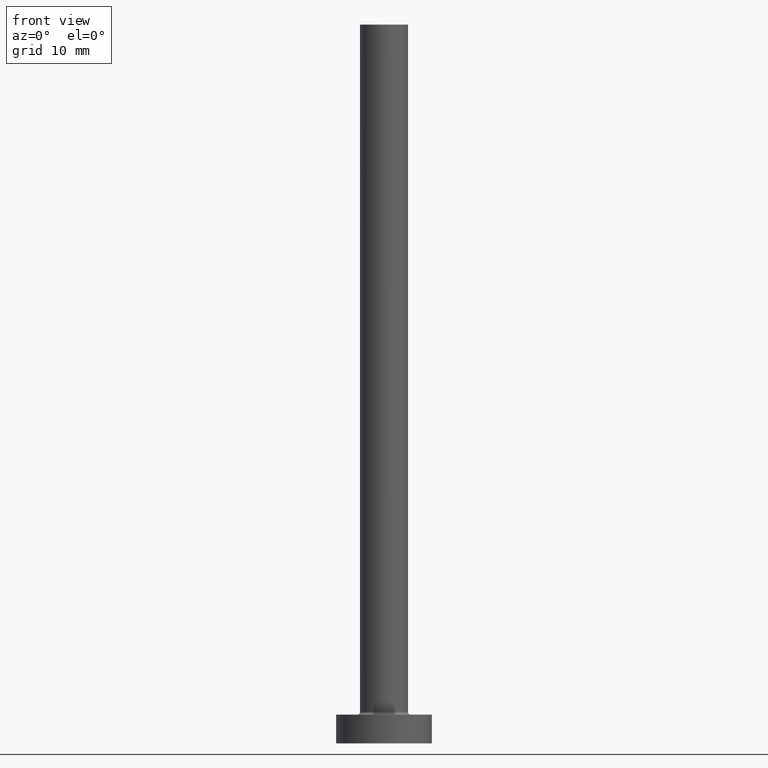
[diagram: clean part render]
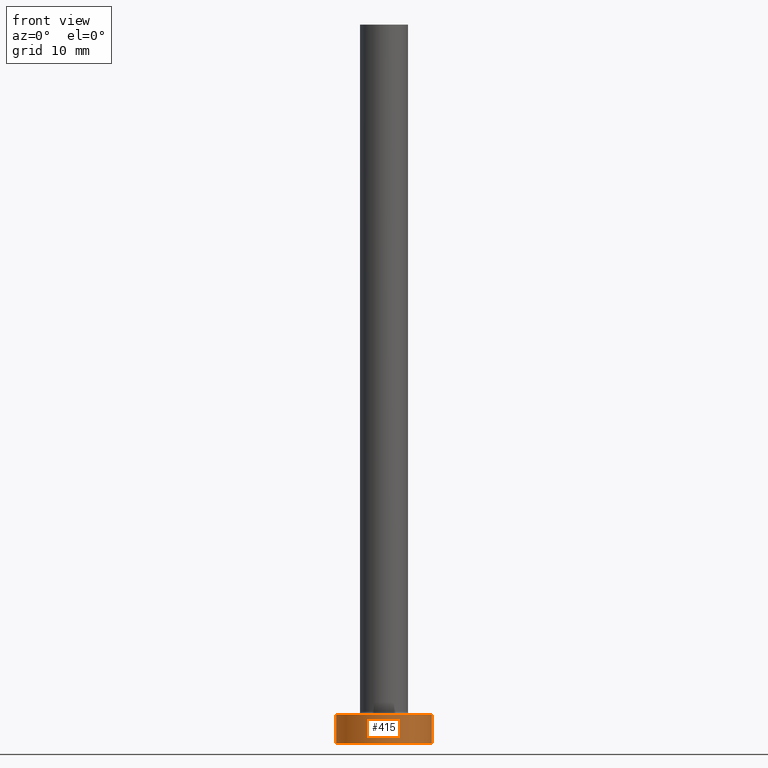
[diagram: same view with one face highlighted and labeled with its STEP entity id]
A machine part, front view. The second image highlights one B-rep face of the part: STEP entity #415.
In plain terms, the highlighted cylindrical surface (partial cylindrical patch) has radius 5 mm, axis along (-0, -0, -1).
Its self-contained STEP definition (entity closure, byte-faithful):
#4 = EDGE_CURVE ( 'NONE', #461, #181, #80, .T. ) ;
#11 = DIRECTION ( 'NONE',  ( -0.000000000000000000, -0.000000000000000000, -1.000000000000000000 ) ) ;
#33 = VECTOR ( 'NONE', #194, 1000.000000000000000 ) ;
#55 = AXIS2_PLACEMENT_3D ( 'NONE', #162, #399, #405 ) ;
#67 = ORIENTED_EDGE ( 'NONE', *, *, #122, .T. ) ;
#80 = CIRCLE ( 'NONE', #332, 5.000000000000000000 ) ;
#83 = CARTESIAN_POINT ( 'NONE',  ( -5.000000000000000000, 0.000000000000000000, 3.000000000000000000 ) ) ;
#85 = CARTESIAN_POINT ( 'NONE',  ( -5.000000000000000000, 0.000000000000000000, 0.000000000000000000 ) ) ;
#86 = CARTESIAN_POINT ( 'NONE',  ( 5.000000000000000000, 6.123233995736766282E-16, 3.000000000000000000 ) ) ;
#113 = CARTESIAN_POINT ( 'NONE',  ( -5.000000000000000000, 0.000000000000000000, 3.000000000000000000 ) ) ;
#122 = EDGE_CURVE ( 'NONE', #423, #461, #320, .T. ) ;
#130 = AXIS2_PLACEMENT_3D ( 'NONE', #259, #289, #395 ) ;
#141 = CARTESIAN_POINT ( 'NONE',  ( 0.000000000000000000, 0.000000000000000000, 0.000000000000000000 ) ) ;
#148 = ORIENTED_EDGE ( 'NONE', *, *, #454, .F. ) ;
#156 = CARTESIAN_POINT ( 'NONE',  ( 5.000000000000000000, 6.123233995736766282E-16, 0.000000000000000000 ) ) ;
#162 = CARTESIAN_POINT ( 'NONE',  ( 0.000000000000000000, 0.000000000000000000, 3.000000000000000000 ) ) ;
#163 = CYLINDRICAL_SURFACE ( 'NONE', #55, 5.000000000000000000 ) ;
#169 = CIRCLE ( 'NONE', #130, 5.000000000000000000 ) ;
#181 = VERTEX_POINT ( 'NONE', #156 ) ;
#194 = DIRECTION ( 'NONE',  ( -0.000000000000000000, -0.000000000000000000, -1.000000000000000000 ) ) ;
#207 = EDGE_CURVE ( 'NONE', #423, #398, #169, .T. ) ;
#257 = ORIENTED_EDGE ( 'NONE', *, *, #207, .F. ) ;
#258 = FACE_OUTER_BOUND ( 'NONE', #437, .T. ) ;
#259 = CARTESIAN_POINT ( 'NONE',  ( 0.000000000000000000, 0.000000000000000000, 3.000000000000000000 ) ) ;
#280 = ORIENTED_EDGE ( 'NONE', *, *, #4, .T. ) ;
#289 = DIRECTION ( 'NONE',  ( 0.000000000000000000, 0.000000000000000000, 1.000000000000000000 ) ) ;
#320 = LINE ( 'NONE', #113, #356 ) ;
#332 = AXIS2_PLACEMENT_3D ( 'NONE', #141, #344, #424 ) ;
#344 = DIRECTION ( 'NONE',  ( 0.000000000000000000, 0.000000000000000000, 1.000000000000000000 ) ) ;
#356 = VECTOR ( 'NONE', #11, 1000.000000000000000 ) ;
#395 = DIRECTION ( 'NONE',  ( 1.000000000000000000, 0.000000000000000000, 0.000000000000000000 ) ) ;
#396 = CARTESIAN_POINT ( 'NONE',  ( 5.000000000000000000, 6.123233995736766282E-16, 3.000000000000000000 ) ) ;
#398 = VERTEX_POINT ( 'NONE', #86 ) ;
#399 = DIRECTION ( 'NONE',  ( -0.000000000000000000, -0.000000000000000000, -1.000000000000000000 ) ) ;
#405 = DIRECTION ( 'NONE',  ( -1.000000000000000000, 0.000000000000000000, 0.000000000000000000 ) ) ;
#415 = ADVANCED_FACE ( 'NONE', ( #258 ), #163, .T. ) ;
#423 = VERTEX_POINT ( 'NONE', #83 ) ;
#424 = DIRECTION ( 'NONE',  ( 1.000000000000000000, 0.000000000000000000, 0.000000000000000000 ) ) ;
#437 = EDGE_LOOP ( 'NONE', ( #148, #257, #67, #280 ) ) ;
#442 = LINE ( 'NONE', #396, #33 ) ;
#454 = EDGE_CURVE ( 'NONE', #398, #181, #442, .T. ) ;
#461 = VERTEX_POINT ( 'NONE', #85 ) ;